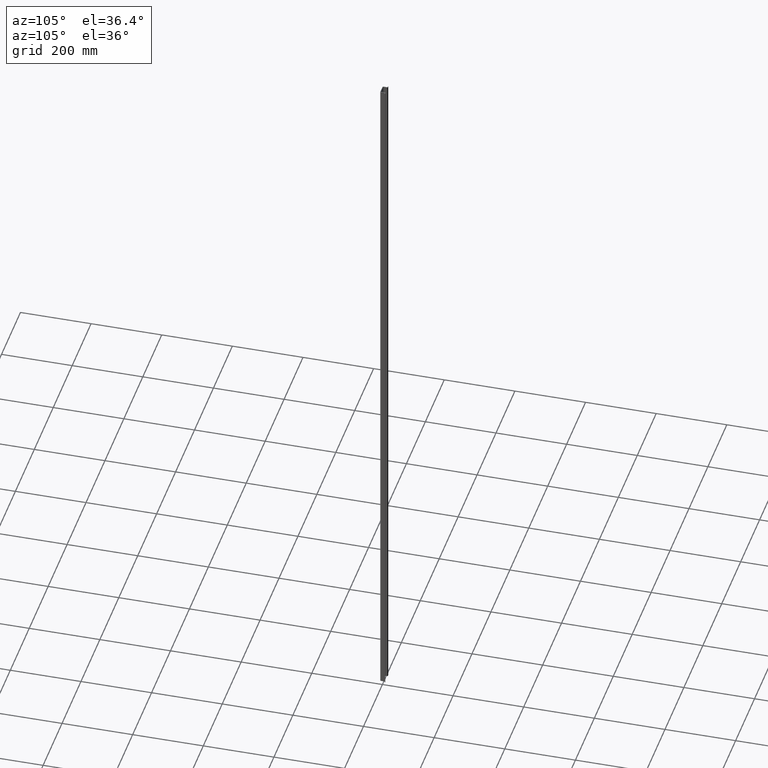
[diagram: clean part render]
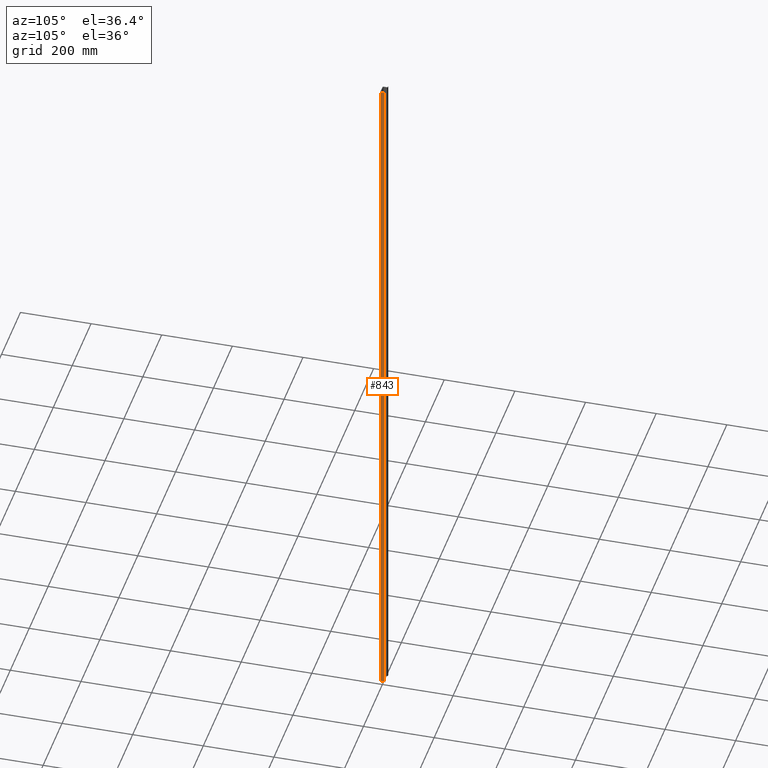
[diagram: same view with one face highlighted and labeled with its STEP entity id]
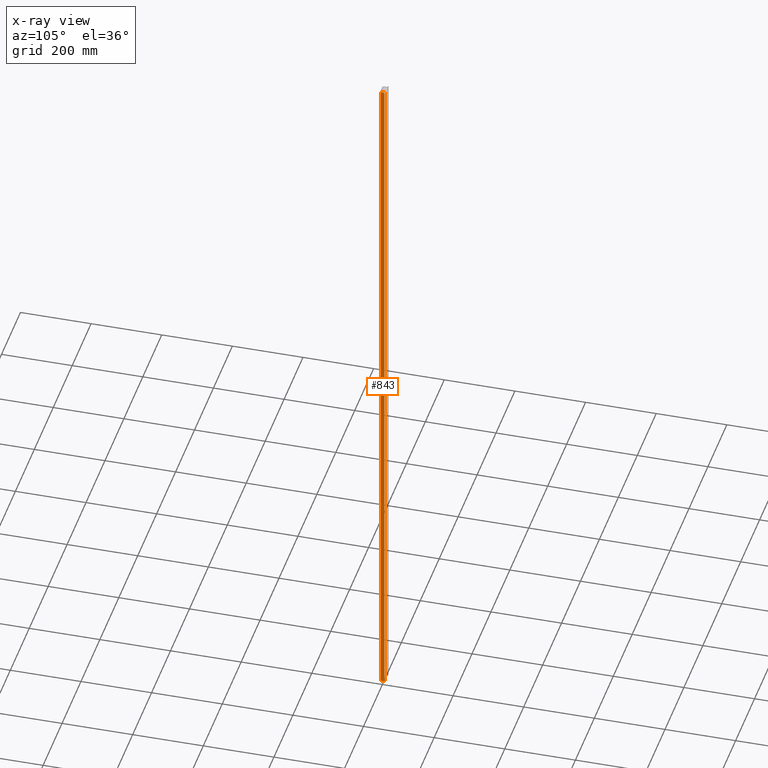
[diagram: x-ray of the same camera — body ghosted, the highlighted face saturated]
A machine part, auxiliary view. The second image highlights one B-rep face of the part: STEP entity #843.
The next image is the same camera in x-ray: the body ghosted, the highlighted face saturated — about 0% of this face is hidden behind the body in this view.
In plain terms, the highlighted planar face has unit normal (1, 0, -0).
Its self-contained STEP definition (entity closure, byte-faithful):
#217 = CARTESIAN_POINT ( 'NONE',  ( 24.30000000000003300, 2.700000000000056600, 0.0000000000000000000 ) ) ;
#223 = CARTESIAN_POINT ( 'NONE',  ( 24.30000000000003300, 12.30000000000022800, 0.0000000000000000000 ) ) ;
#250 = CARTESIAN_POINT ( 'NONE',  ( 24.30000000000003300, 2.700000000000056600, 2000.000000000000000 ) ) ;
#253 = CARTESIAN_POINT ( 'NONE',  ( 24.30000000000003300, 12.30000000000022800, 2000.000000000000000 ) ) ;
#283 = DIRECTION ( 'NONE',  ( -0.0000000000000000000, 0.0000000000000000000, -1.000000000000000000 ) ) ;
#308 = FACE_OUTER_BOUND ( 'NONE', #757, .T. ) ;
#315 = PLANE ( 'NONE',  #474 ) ;
#320 = CARTESIAN_POINT ( 'NONE',  ( 24.30000000000003300, -22.46146667334581400, 2000.000000000000000 ) ) ;
#321 = DIRECTION ( 'NONE',  ( 1.000000000000000000, 0.0000000000000000000, -0.0000000000000000000 ) ) ;
#325 = DIRECTION ( 'NONE',  ( -0.0000000000000000000, -0.0000000000000000000, -1.000000000000000000 ) ) ;
#332 = CARTESIAN_POINT ( 'NONE',  ( 24.30000000000003300, -22.46146667334581400, 0.0000000000000000000 ) ) ;
#351 = LINE ( 'NONE', #332, #488 ) ;
#359 = LINE ( 'NONE', #364, #495 ) ;
#364 = CARTESIAN_POINT ( 'NONE',  ( 24.30000000000003300, 12.30000000000022800, 2000.000000000000000 ) ) ;
#370 = LINE ( 'NONE', #383, #492 ) ;
#373 = DIRECTION ( 'NONE',  ( 0.0000000000000000000, -1.000000000000000000, 0.0000000000000000000 ) ) ;
#381 = DIRECTION ( 'NONE',  ( 0.0000000000000000000, -1.000000000000000000, 0.0000000000000000000 ) ) ;
#383 = CARTESIAN_POINT ( 'NONE',  ( 24.30000000000003300, -22.46146667334581400, 2000.000000000000000 ) ) ;
#426 = CARTESIAN_POINT ( 'NONE',  ( 24.30000000000003300, 2.700000000000056600, 2000.000000000000000 ) ) ;
#447 = DIRECTION ( 'NONE',  ( -0.0000000000000000000, -0.0000000000000000000, -1.000000000000000000 ) ) ;
#451 = LINE ( 'NONE', #426, #524 ) ;
#474 = AXIS2_PLACEMENT_3D ( 'NONE', #320, #321, #283 ) ;
#488 = VECTOR ( 'NONE', #373, 1000.000000000000000 ) ;
#492 = VECTOR ( 'NONE', #381, 1000.000000000000000 ) ;
#495 = VECTOR ( 'NONE', #325, 1000.000000000000000 ) ;
#524 = VECTOR ( 'NONE', #447, 1000.000000000000000 ) ;
#600 = VERTEX_POINT ( 'NONE', #217 ) ;
#618 = VERTEX_POINT ( 'NONE', #223 ) ;
#620 = VERTEX_POINT ( 'NONE', #250 ) ;
#630 = ORIENTED_EDGE ( 'NONE', *, *, #855, .F. ) ;
#631 = ORIENTED_EDGE ( 'NONE', *, *, #853, .F. ) ;
#632 = ORIENTED_EDGE ( 'NONE', *, *, #863, .T. ) ;
#633 = ORIENTED_EDGE ( 'NONE', *, *, #889, .T. ) ;
#634 = VERTEX_POINT ( 'NONE', #253 ) ;
#757 = EDGE_LOOP ( 'NONE', ( #630, #631, #632, #633 ) ) ;
#843 = ADVANCED_FACE ( 'NONE', ( #308 ), #315, .T. ) ;
#853 = EDGE_CURVE ( 'NONE', #634, #618, #359, .T. ) ;
#855 = EDGE_CURVE ( 'NONE', #618, #600, #351, .T. ) ;
#863 = EDGE_CURVE ( 'NONE', #634, #620, #370, .T. ) ;
#889 = EDGE_CURVE ( 'NONE', #620, #600, #451, .T. ) ;